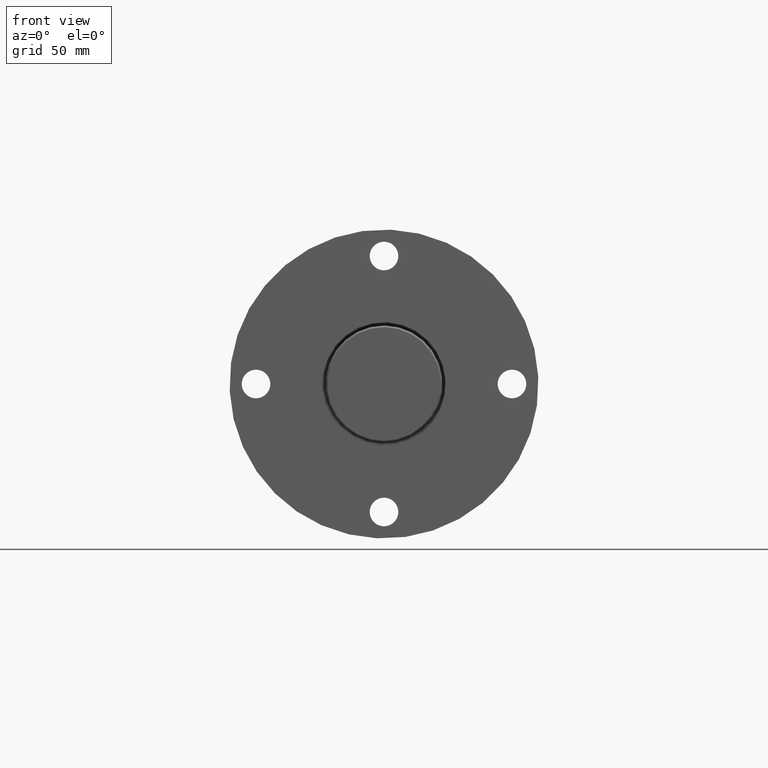
[diagram: clean part render]
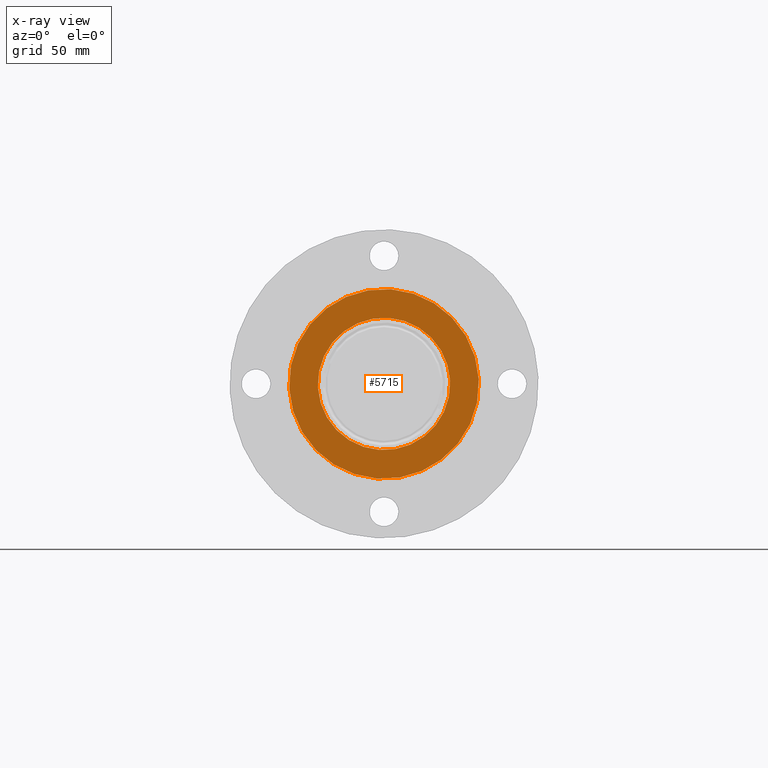
[diagram: x-ray — body ghosted, one internal face saturated and labeled with its STEP entity id]
A machine part, front view, then the same camera in x-ray: the body is ghosted and one INTERNAL B-rep face — a face not visible from any outside direction — is saturated and labeled: STEP entity #5715.
In plain terms, the highlighted planar face has unit normal (-0, -1, 0).
Its self-contained STEP definition (entity closure, byte-faithful):
#279 = ORIENTED_EDGE ( 'NONE', *, *, #8338, .T. ) ;
#1621 = DIRECTION ( 'NONE',  ( -1.634356603239235900E-016, -1.000000000000000000, 2.267131750214071800E-016 ) ) ;
#1651 = FACE_BOUND ( 'NONE', #4283, .T. ) ;
#2880 = CARTESIAN_POINT ( 'NONE',  ( 5.112621207458022300E-013, 198.4999999999999400, 1.018875935446651700E-014 ) ) ;
#4283 = EDGE_LOOP ( 'NONE', ( #279, #9767 ) ) ;
#4984 = VERTEX_POINT ( 'NONE', #26310 ) ;
#5715 = ADVANCED_FACE ( 'NONE', ( #1651, #34951 ), #30160, .T. ) ;
#6562 = CARTESIAN_POINT ( 'NONE',  ( -21.47107392624839800, 198.4999999999999400, -20.95215942220643500 ) ) ;
#6705 = CARTESIAN_POINT ( 'NONE',  ( 5.112621207458022300E-013, 198.4999999999999700, 1.018875935446651400E-014 ) ) ;
#7065 = AXIS2_PLACEMENT_3D ( 'NONE', #23319, #29267, #12140 ) ;
#7516 = CARTESIAN_POINT ( 'NONE',  ( 5.112621207458022300E-013, 198.4999999999999400, 1.018875935446651700E-014 ) ) ;
#8338 = EDGE_CURVE ( 'NONE', #4984, #34702, #16150, .T. ) ;
#9651 = CIRCLE ( 'NONE', #12501, 43.00000000000001400 ) ;
#9767 = ORIENTED_EDGE ( 'NONE', *, *, #22837, .T. ) ;
#10216 = AXIS2_PLACEMENT_3D ( 'NONE', #2880, #14443, #16797 ) ;
#11409 = CIRCLE ( 'NONE', #10216, 30.00000000000000700 ) ;
#12140 = DIRECTION ( 'NONE',  ( 0.7157024642082969700, 0.0000000000000000000, 0.6984053140735481100 ) ) ;
#12501 = AXIS2_PLACEMENT_3D ( 'NONE', #6705, #32116, #26433 ) ;
#14379 = AXIS2_PLACEMENT_3D ( 'NONE', #35959, #1621, #21469 ) ;
#14443 = DIRECTION ( 'NONE',  ( 1.634356603239235400E-016, 1.000000000000000000, -2.267131750214072300E-016 ) ) ;
#16150 = CIRCLE ( 'NONE', #34354, 30.00000000000000700 ) ;
#16797 = DIRECTION ( 'NONE',  ( 0.7157024642082970800, 0.0000000000000000000, 0.6984053140735480000 ) ) ;
#19647 = VERTEX_POINT ( 'NONE', #34130 ) ;
#19875 = ORIENTED_EDGE ( 'NONE', *, *, #34690, .F. ) ;
#21328 = CIRCLE ( 'NONE', #7065, 43.00000000000001400 ) ;
#21384 = CARTESIAN_POINT ( 'NONE',  ( 30.77520596095729400, 198.4999999999999700, 30.03142850516258700 ) ) ;
#21469 = DIRECTION ( 'NONE',  ( -0.7157024642082970800, -4.136638137209480600E-017, -0.6984053140735480000 ) ) ;
#22837 = EDGE_CURVE ( 'NONE', #34702, #4984, #11409, .T. ) ;
#23319 = CARTESIAN_POINT ( 'NONE',  ( 5.112621207458022300E-013, 198.4999999999999700, 1.018875935446651400E-014 ) ) ;
#24289 = DIRECTION ( 'NONE',  ( 0.7157024642082970800, 0.0000000000000000000, 0.6984053140735480000 ) ) ;
#26310 = CARTESIAN_POINT ( 'NONE',  ( 21.47107392624942400, 198.4999999999999400, 20.95215942220645600 ) ) ;
#26433 = DIRECTION ( 'NONE',  ( 0.7157024642082969700, 0.0000000000000000000, 0.6984053140735481100 ) ) ;
#26872 = VERTEX_POINT ( 'NONE', #21384 ) ;
#27670 = EDGE_LOOP ( 'NONE', ( #32175, #19875 ) ) ;
#29267 = DIRECTION ( 'NONE',  ( 1.634356603239235400E-016, 1.000000000000000000, -2.267131750214072300E-016 ) ) ;
#30160 = PLANE ( 'NONE',  #14379 ) ;
#32116 = DIRECTION ( 'NONE',  ( 1.634356603239235400E-016, 1.000000000000000000, -2.267131750214072300E-016 ) ) ;
#32175 = ORIENTED_EDGE ( 'NONE', *, *, #32537, .F. ) ;
#32537 = EDGE_CURVE ( 'NONE', #26872, #19647, #9651, .T. ) ;
#34130 = CARTESIAN_POINT ( 'NONE',  ( -30.77520596095625600, 198.4999999999999700, -30.03142850516256600 ) ) ;
#34354 = AXIS2_PLACEMENT_3D ( 'NONE', #7516, #35913, #24289 ) ;
#34690 = EDGE_CURVE ( 'NONE', #19647, #26872, #21328, .T. ) ;
#34702 = VERTEX_POINT ( 'NONE', #6562 ) ;
#34951 = FACE_OUTER_BOUND ( 'NONE', #27670, .T. ) ;
#35913 = DIRECTION ( 'NONE',  ( 1.634356603239235400E-016, 1.000000000000000000, -2.267131750214072300E-016 ) ) ;
#35959 = CARTESIAN_POINT ( 'NONE',  ( 30.77520596095729000, 198.4999999999999700, 30.03142850516258400 ) ) ;